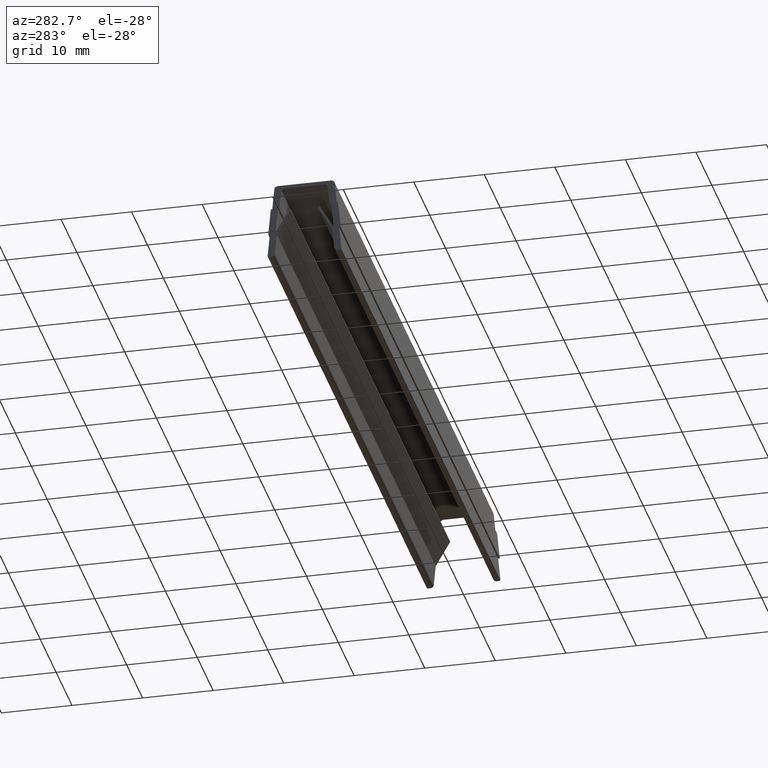
[diagram: clean part render]
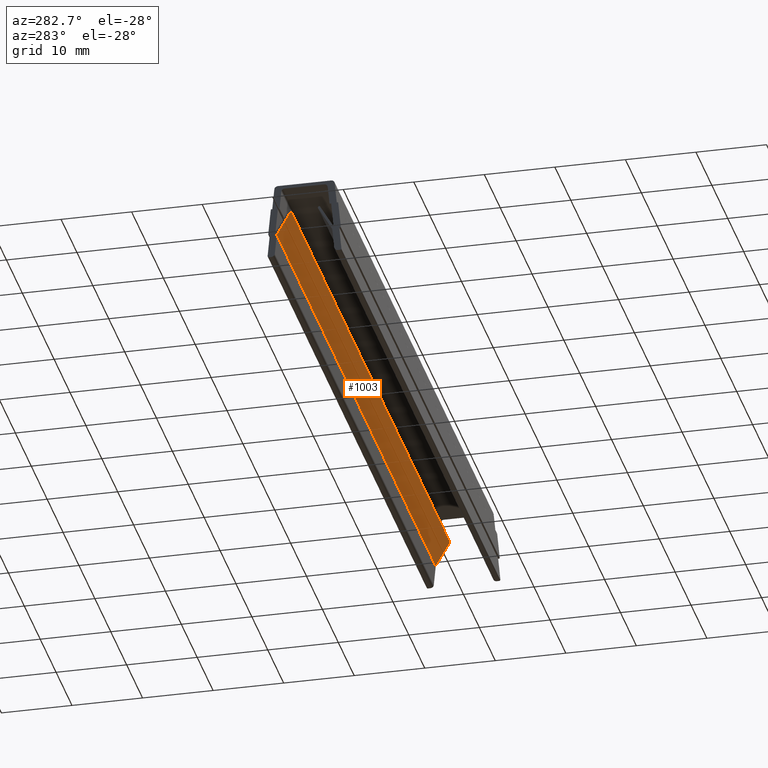
[diagram: same view with one face highlighted and labeled with its STEP entity id]
A machine part, auxiliary view. The second image highlights one B-rep face of the part: STEP entity #1003.
In plain terms, the highlighted planar face has unit normal (0, -0.866, -0.5).
Its self-contained STEP definition (entity closure, byte-faithful):
#133=CARTESIAN_POINT('',(100.0,1.918624688969501,-3.631263165628653));
#134=VERTEX_POINT('',#133);
#152=CARTESIAN_POINT('',(0.0,1.918624688969501,-3.631263165628653));
#153=VERTEX_POINT('',#152);
#161=CARTESIAN_POINT('',(100.0,1.918624688969501,-3.631263165628653));
#162=DIRECTION('',(-1.0,0.0,0.0));
#163=VECTOR('',#162,100.0);
#164=LINE('',#161,#163);
#165=EDGE_CURVE('',#134,#153,#164,.T.);
#450=CARTESIAN_POINT('',(100.0,3.927156392899910,-7.110142125449002));
#451=VERTEX_POINT('',#450);
#452=CARTESIAN_POINT('',(100.0,3.927156392899910,-7.110142125449000));
#453=DIRECTION('',(0.0,-0.500000000000000,0.866025403784439));
#454=VECTOR('',#453,4.017063407860809);
#455=LINE('',#452,#454);
#456=EDGE_CURVE('',#451,#134,#455,.T.);
#649=CARTESIAN_POINT('',(0.0,3.927156392899910,-7.110142125449002));
#650=VERTEX_POINT('',#649);
#657=CARTESIAN_POINT('',(0.0,3.927156392899910,-7.110142125449003));
#658=DIRECTION('',(0.0,-0.500000000000000,0.866025403784439));
#659=VECTOR('',#658,4.017063407860809);
#660=LINE('',#657,#659);
#661=EDGE_CURVE('',#650,#153,#660,.T.);
#983=CARTESIAN_POINT('',(100.0,3.927156392899910,-7.110142125449002));
#984=DIRECTION('',(-1.0,0.0,0.0));
#985=VECTOR('',#984,100.0);
#986=LINE('',#983,#985);
#987=EDGE_CURVE('',#451,#650,#986,.T.);
#992=CARTESIAN_POINT('',(105.0,4.027582978096426,-7.284086073440019));
#993=DIRECTION('',(0.0,-0.866025403784439,-0.500000000000000));
#994=DIRECTION('',(0.0,-0.500000000000000,0.866025403784439));
#995=AXIS2_PLACEMENT_3D('',#992,#993,#994);
#996=PLANE('',#995);
#997=ORIENTED_EDGE('',*,*,#456,.T.);
#998=ORIENTED_EDGE('',*,*,#165,.T.);
#999=ORIENTED_EDGE('',*,*,#661,.F.);
#1000=ORIENTED_EDGE('',*,*,#987,.F.);
#1001=EDGE_LOOP('',(#997,#998,#999,#1000));
#1002=FACE_OUTER_BOUND('',#1001,.T.);
#1003=ADVANCED_FACE('',(#1002),#996,.T.);